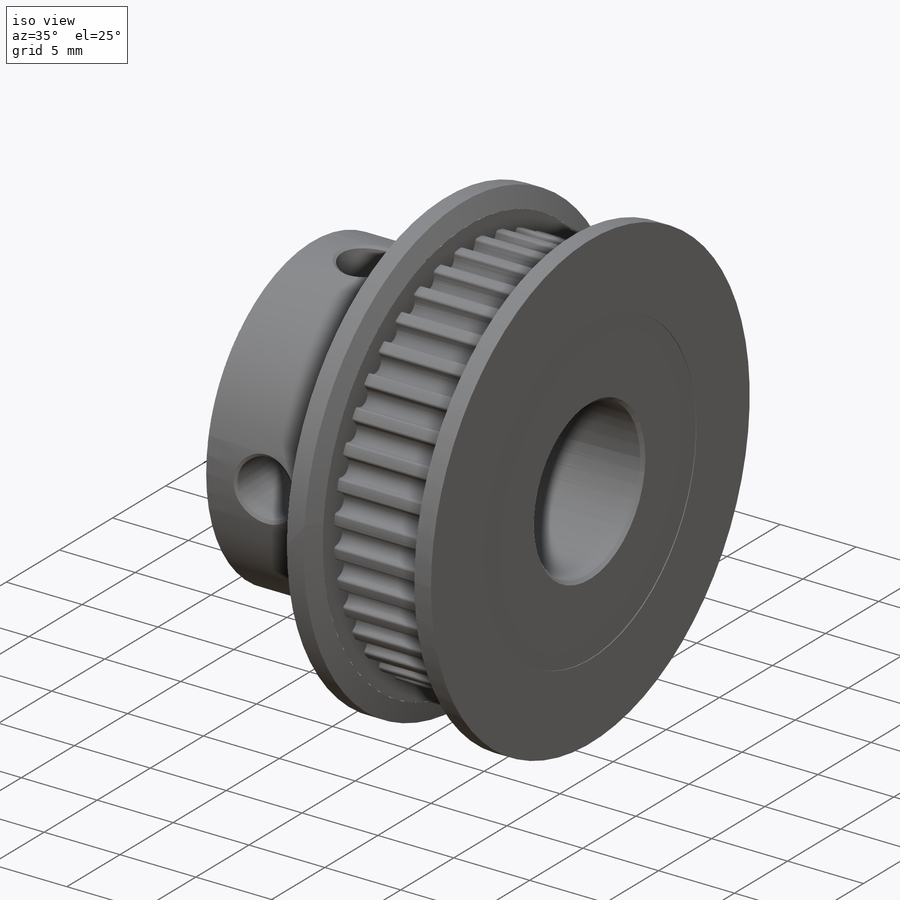
[diagram: iso view]
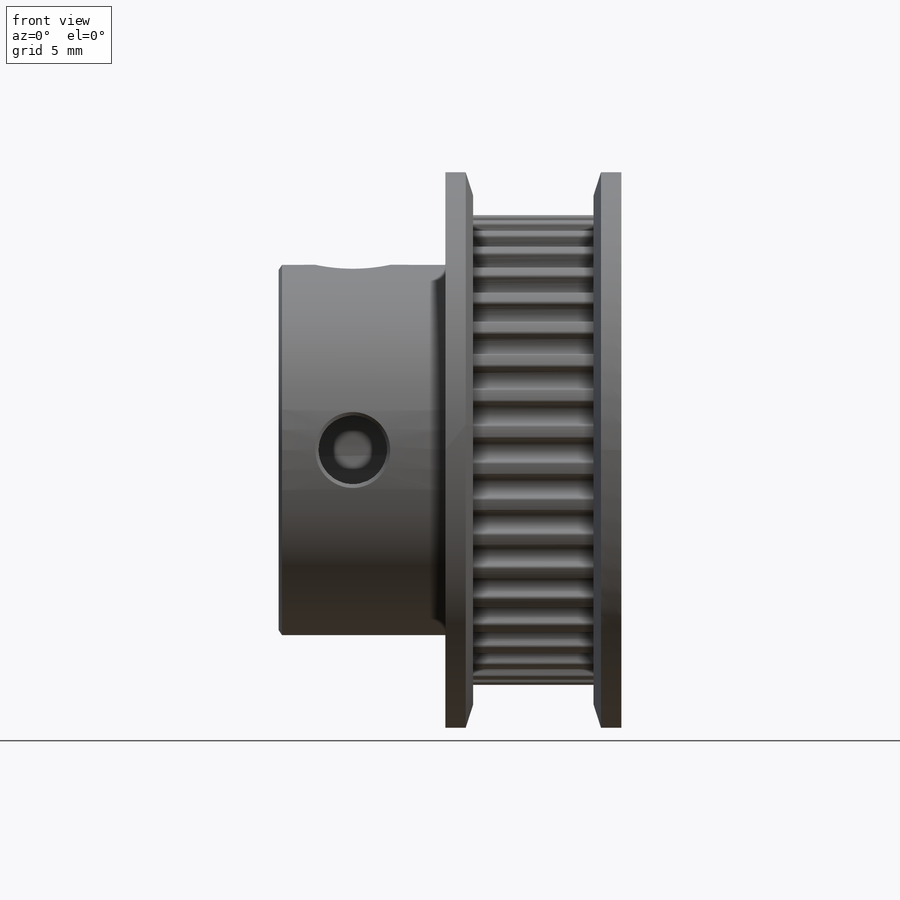
[diagram: front view]
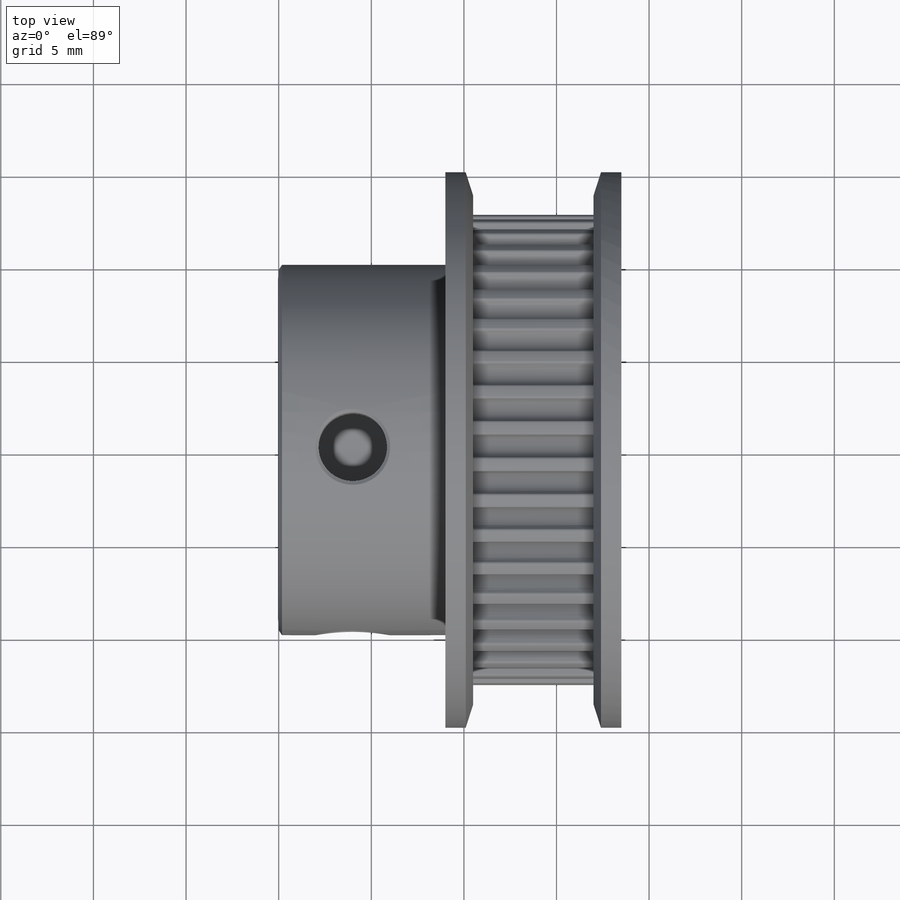
[diagram: top view]
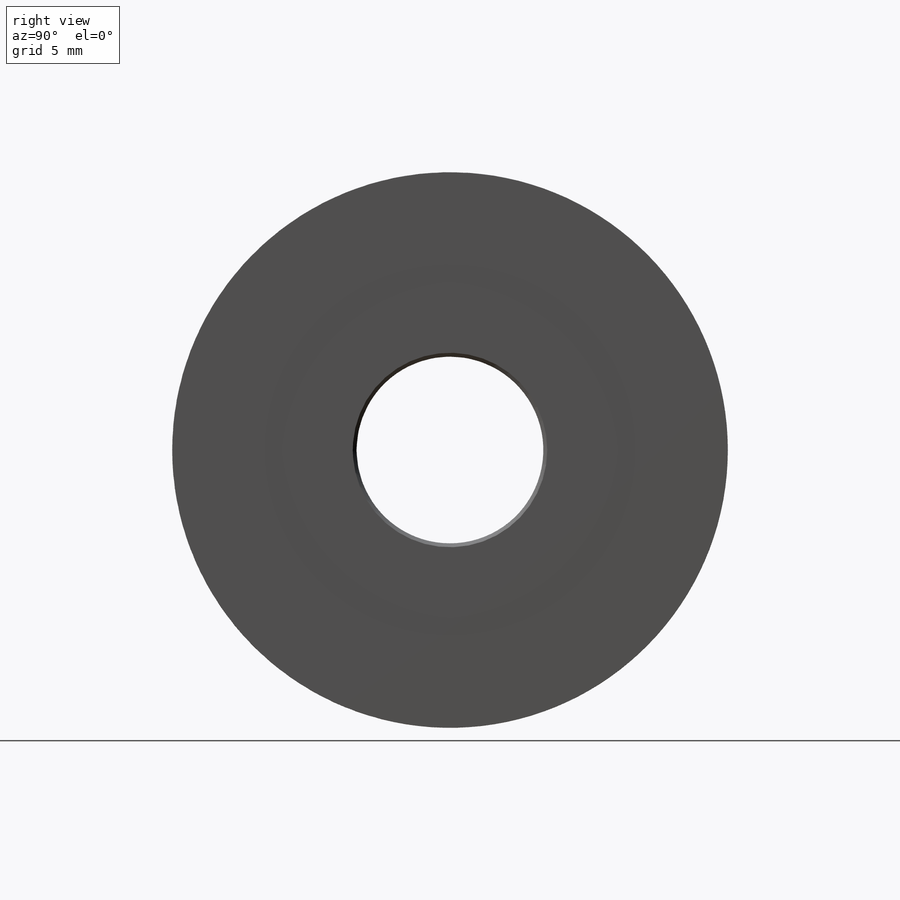
[diagram: right view]
SOLIDWORKS PART (.sldprt)
format: sldprt  version: not decoded by parser v0  size: 751,616 bytes
history: native  units: mm
features: sketch x4, plane x3, cut_extrude x3, pattern_circular x2, material x1, revolve x1, chamfer x1 (+9 scaffold rows collapsed)
feature tree (24):
  scaffold x9  (default folders/planes/origin — collapsed)
  material  "6061-O (SS)"
  plane  "Сверху"
  plane  "Справа"
  plane  "Спереди"
  sketch  "Эскиз1"  dims[c1.D22=0.1mm c1.D1=7.0mm c1.D2=5.5mm c1.D3=10.0mm c1.D4=0.15mm c1.D5=0.5mm c1.D6=1.0mm c1.D7=0.65mm c1.D8=7.0mm c1.D9=7.5mm c1.D10=18.5mm c1.D11=15.0mm c1.D12=1.0mm c1.D13=1.0mm c1.D14=~1.019239mm c2.D13=2.0mm c2.D14=~4.350472mm c2.D15=0.5mm c3.D14=17.5mm c3.D15=1.84mm c3.D17=~0.256133mm c3.D7=6.0mm c3.D8=6.5mm c3.D18=3.5mm c3.D19=~3.501218mm c4.D18=3.5mm c4.D19=0.3mm c4.D20=3.2mm c4.D21=0.3mm c4.D22=~1.390591mm c4.D23=0.1mm c4.D13=4.25mm c4.D6=12.71mm c4.D4=4.25mm c5.D13=~0.615262mm c5.D5=1.0mm c5.D9=5.5mm c5.D2=5.5mm c6.D9=~0.531394mm c6.D5=~1.301291mm c6.D2=9.0mm c6.D4=0.9mm c7.D5=0.9mm c7.D2=9.0mm]
  revolve  "Body"  Angle=360deg
  sketch  "Эскиз2"  dims[D1=10.1mm]
  cut_extrude  "Bore"  [1 undecoded]
  sketch  "Эскиз3"  dims[c1.D1=~0.914771mm c1.D2=1.0mm c1.D3=22.3mm c1.D4=22.1mm c1.D5=22.1mm c2.D1=0.555mm c2.D2=1.0mm c2.D3=0.15mm c3.D1=10.548mm c3.D2=2.0mm c3.D3=2.0mm c4.D1=1.38mm c4.D3=1.38mm c4.D4=~14.427602mm c5.D4=10.0deg c6.D4=2.1mm c6.D5=0.75mm c6.D2=~0.477311mm c7.D4=~0.530517mm c7.D5=~0.541405mm c8.D5=~281.510492deg c8.D6=~2.200271mm c8.D7=~0.259825mm c8.D8=~0.725517mm c8.D9=~1.108036mm c8.D10=~0.408543mm c8.D11=~0.501124mm c8.D12=~0.321391mm c8.D13=~0.997753mm c8.D14=~0.321391mm c8.D15=~0.197814mm c8.D16=~0.197814mm c8.D17=~15.67269mm c9.D17=4.5deg c9.D18=~1.182914mm c9.D19=~1.480351mm c9.D20=~12.717904mm]
  cut_extrude  "Teeth"  [1 undecoded]
  sketch  "Эскиз4"  dims[D1=3.7mm D2=4.0mm D3=3.0mm]
  cut_extrude  "Fix"  [1 undecoded]
  chamfer  "Фаска"  Distance=0.2mm Angle=45deg
  pattern_circular  "Круговой массив1"  Count=2 Angle=270deg
  pattern_circular  "Круговой массив3"  Count=40 Angle=360deg
decode coverage: 8 of 11 modeling features carry decoded parameters
note: ~ marks probable driven/reference dimensions
note: 3 parameter values undecoded
summary: no parameter record found for 3 features
note: suppression state not decoded; provenance and decode notes live in map.json
